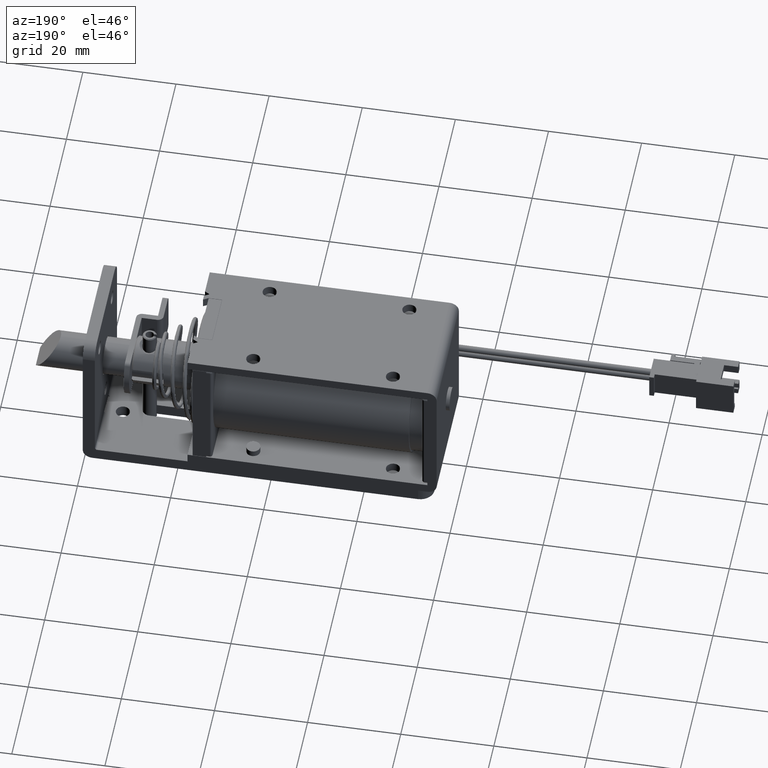
[diagram: clean part render]
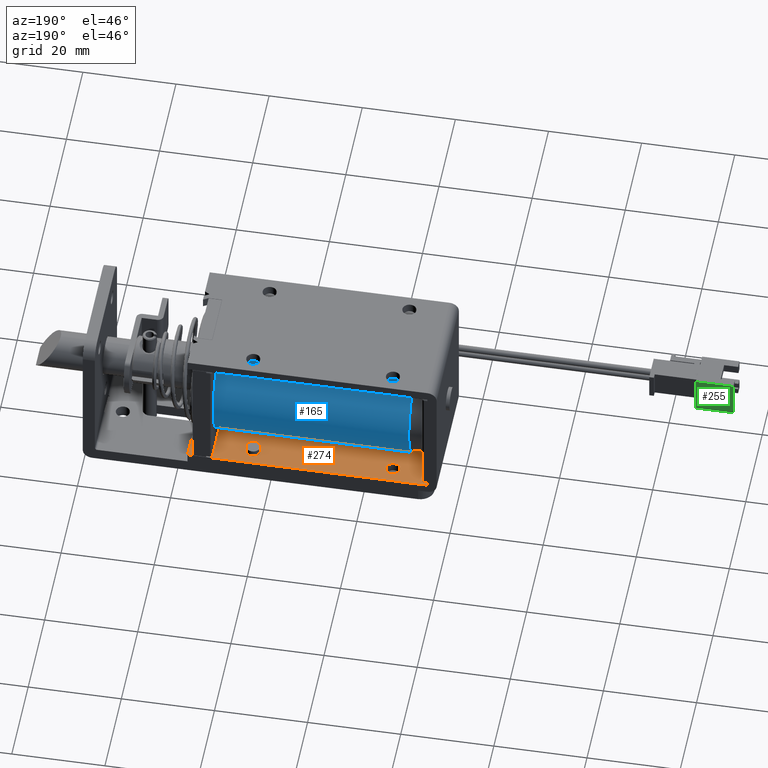
[diagram: same view with three faces highlighted in distinct colors, each labeled with its STEP entity id]
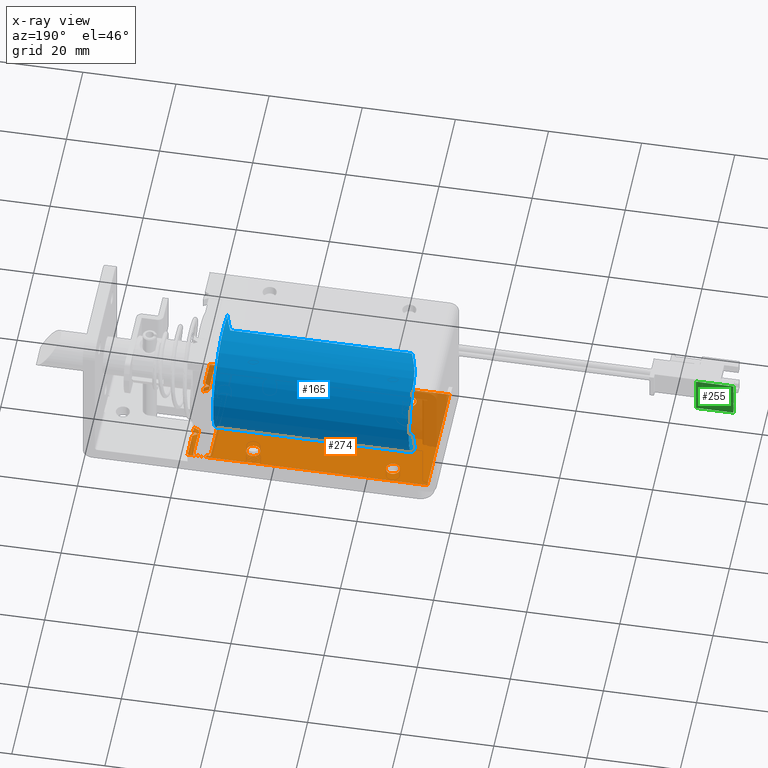
[diagram: x-ray of the same camera — body ghosted, the three highlighted faces saturated]
A machine part, auxiliary view with three faces highlighted in distinct colors.
The next image is the same camera in x-ray (body ghosted, the three faces saturated) — at least one of them is partly hidden behind the body in this view.
Their STEP definitions:

[orange] entity #274 — the highlighted planar face has unit normal (0, 0, -1).
#274=ADVANCED_FACE('',(#1783,#1784,#1785,#1786,#1787),#1782,.F.);
#1782=PLANE('',#5100);
#1783=FACE_OUTER_BOUND('',#5101,.T.);
#1784=FACE_BOUND('',#5102,.T.);
#1785=FACE_BOUND('',#5103,.T.);
#1786=FACE_BOUND('',#5104,.T.);
#1787=FACE_BOUND('',#5105,.T.);
#5097=CARTESIAN_POINT('',(-1.73500000000E+01,-1.62000000000E+01,-1.30000000000E+01));
#5098=DIRECTION('',(0.00000000000E+00,0.00000000000E+00,-1.00000000000E+00));
#5099=DIRECTION('',(-1.00000000000E+00,0.00000000000E+00,0.00000000000E+00));
#5100=AXIS2_PLACEMENT_3D('',#5097,#5098,#5099);
#5101=EDGE_LOOP('',(#8372,#8373,#8374,#8375,#8376,#8377,#8378,#8379,#8380,#8381,#8382,#8383,#8384,#8385,#8386,#8387,#8388,#8389,#8390,#8391,#8392,#8393,#8394,#8395));
#5102=EDGE_LOOP('',(#8396,#8397));
#5103=EDGE_LOOP('',(#8398,#8399));
#5104=EDGE_LOOP('',(#8400,#8401));
#5105=EDGE_LOOP('',(#8402,#8403));
#8372=ORIENTED_EDGE('',*,*,#10132,.F.);
#8373=ORIENTED_EDGE('',*,*,#10133,.T.);
#8374=ORIENTED_EDGE('',*,*,#10134,.T.);
#8375=ORIENTED_EDGE('',*,*,#10135,.F.);
#8376=ORIENTED_EDGE('',*,*,#9862,.T.);
#8377=ORIENTED_EDGE('',*,*,#9858,.T.);
#8378=ORIENTED_EDGE('',*,*,#9866,.T.);
#8379=ORIENTED_EDGE('',*,*,#10136,.F.);
#8380=ORIENTED_EDGE('',*,*,#10137,.T.);
#8381=ORIENTED_EDGE('',*,*,#10138,.T.);
#8382=ORIENTED_EDGE('',*,*,#10139,.F.);
#8383=ORIENTED_EDGE('',*,*,#10140,.F.);
#8384=ORIENTED_EDGE('',*,*,#10141,.T.);
#8385=ORIENTED_EDGE('',*,*,#10142,.F.);
#8386=ORIENTED_EDGE('',*,*,#10143,.F.);
#8387=ORIENTED_EDGE('',*,*,#10144,.T.);
#8388=ORIENTED_EDGE('',*,*,#10145,.T.);
#8389=ORIENTED_EDGE('',*,*,#10146,.F.);
#8390=ORIENTED_EDGE('',*,*,#10147,.F.);
#8391=ORIENTED_EDGE('',*,*,#10148,.T.);
#8392=ORIENTED_EDGE('',*,*,#10149,.F.);
#8393=ORIENTED_EDGE('',*,*,#10150,.F.);
#8394=ORIENTED_EDGE('',*,*,#10151,.T.);
#8395=ORIENTED_EDGE('',*,*,#10152,.F.);
#8396=ORIENTED_EDGE('',*,*,#10153,.T.);
#8397=ORIENTED_EDGE('',*,*,#10154,.T.);
#8398=ORIENTED_EDGE('',*,*,#10155,.F.);
#8399=ORIENTED_EDGE('',*,*,#10156,.F.);
#8400=ORIENTED_EDGE('',*,*,#10157,.T.);
#8401=ORIENTED_EDGE('',*,*,#10158,.T.);
#8402=ORIENTED_EDGE('',*,*,#10159,.F.);
#8403=ORIENTED_EDGE('',*,*,#10160,.F.);
#9858=EDGE_CURVE('',#11568,#11621,#11628,.T.);
#9862=EDGE_CURVE('',#11641,#11568,#11654,.T.);
#9866=EDGE_CURVE('',#11621,#11673,#11680,.T.);
#10132=EDGE_CURVE('',#13452,#11844,#13453,.T.);
#10133=EDGE_CURVE('',#13452,#13459,#13460,.T.);
#10134=EDGE_CURVE('',#13459,#13466,#13467,.T.);
#10135=EDGE_CURVE('',#11641,#13466,#13473,.T.);
#10136=EDGE_CURVE('',#13479,#11673,#13480,.T.);
#10137=EDGE_CURVE('',#13479,#13486,#13487,.T.);
#10138=EDGE_CURVE('',#13486,#13493,#13494,.T.);
#10139=EDGE_CURVE('',#11871,#13493,#13500,.T.);
#10140=EDGE_CURVE('',#13506,#11871,#13507,.T.);
#10141=EDGE_CURVE('',#13506,#13513,#13514,.T.);
#10142=EDGE_CURVE('',#13520,#13513,#13521,.T.);
#10143=EDGE_CURVE('',#13527,#13520,#13528,.T.);
#10144=EDGE_CURVE('',#13527,#13534,#13535,.T.);
#10145=EDGE_CURVE('',#13534,#13541,#13542,.T.);
#10146=EDGE_CURVE('',#13548,#13541,#13549,.T.);
#10147=EDGE_CURVE('',#13555,#13548,#13556,.T.);
#10148=EDGE_CURVE('',#13555,#13562,#13563,.T.);
#10149=EDGE_CURVE('',#13569,#13562,#13570,.T.);
#10150=EDGE_CURVE('',#13576,#13569,#13577,.T.);
#10151=EDGE_CURVE('',#13576,#13583,#13584,.T.);
#10152=EDGE_CURVE('',#11844,#13583,#13590,.T.);
#10153=EDGE_CURVE('',#13596,#13597,#13598,.T.);
#10154=EDGE_CURVE('',#13597,#13596,#13604,.T.);
#10155=EDGE_CURVE('',#13610,#13611,#13612,.T.);
#10156=EDGE_CURVE('',#13611,#13610,#13618,.T.);
#10157=EDGE_CURVE('',#13624,#13625,#13626,.T.);
#10158=EDGE_CURVE('',#13625,#13624,#13632,.T.);
#10159=EDGE_CURVE('',#13638,#13639,#13640,.T.);
#10160=EDGE_CURVE('',#13639,#13638,#13646,.T.);
#11568=VERTEX_POINT('',#17984);
#11621=VERTEX_POINT('',#18017);
#11628=LINE('',#18022,#18023);
#11641=VERTEX_POINT('',#18029);
#11654=LINE('',#18037,#18038);
#11673=VERTEX_POINT('',#18048);
#11680=LINE('',#18053,#18054);
#11844=VERTEX_POINT('',#18145);
#11871=VERTEX_POINT('',#18160);
#13452=VERTEX_POINT('',#19067);
#13453=LINE('',#19068,#19069);
#13459=VERTEX_POINT('',#19071);
#13460=LINE('',#19072,#19073);
#13466=VERTEX_POINT('',#19075);
#13467=LINE('',#19076,#19077);
#13473=LINE('',#19079,#19080);
#13479=VERTEX_POINT('',#19082);
#13480=LINE('',#19083,#19084);
#13486=VERTEX_POINT('',#19086);
#13487=LINE('',#19087,#19088);
#13493=VERTEX_POINT('',#19090);
#13494=LINE('',#19091,#19092);
#13500=LINE('',#19094,#19095);
#13506=VERTEX_POINT('',#19097);
#13507=LINE('',#19098,#19099);
#13513=VERTEX_POINT('',#19101);
#13514=LINE('',#19102,#19103);
#13520=VERTEX_POINT('',#19105);
#13521=LINE('',#19106,#19107);
#13527=VERTEX_POINT('',#19109);
#13528=LINE('',#19110,#19111);
#13534=VERTEX_POINT('',#19113);
#13535=LINE('',#19114,#19115);
#13541=VERTEX_POINT('',#19117);
#13542=LINE('',#19118,#19119);
#13548=VERTEX_POINT('',#19121);
#13549=LINE('',#19122,#19123);
#13555=VERTEX_POINT('',#19125);
#13556=LINE('',#19126,#19127);
#13562=VERTEX_POINT('',#19129);
#13563=LINE('',#19130,#19131);
#13569=VERTEX_POINT('',#19133);
#13570=LINE('',#19134,#19135);
#13576=VERTEX_POINT('',#19137);
#13577=LINE('',#19138,#19139);
#13583=VERTEX_POINT('',#19141);
#13584=LINE('',#19142,#19143);
#13590=LINE('',#19145,#19146);
#13596=VERTEX_POINT('',#19148);
#13597=VERTEX_POINT('',#19149);
#13598=CIRCLE('',#19153,1.50000000000E+00);
#13604=CIRCLE('',#19157,1.50000000000E+00);
#13610=VERTEX_POINT('',#19158);
#13611=VERTEX_POINT('',#19159);
#13612=CIRCLE('',#19163,1.50000000000E+00);
#13618=CIRCLE('',#19167,1.50000000000E+00);
#13624=VERTEX_POINT('',#19168);
#13625=VERTEX_POINT('',#19169);
#13626=CIRCLE('',#19173,1.50000000000E+00);
#13632=CIRCLE('',#19177,1.50000000000E+00);
#13638=VERTEX_POINT('',#19178);
#13639=VERTEX_POINT('',#19179);
#13640=CIRCLE('',#19183,1.50000000000E+00);
#13646=CIRCLE('',#19187,1.50000000000E+00);
#17984=CARTESIAN_POINT('',(-2.73000000000E+01,-1.30000000000E+01,-1.30000000000E+01));
#18017=CARTESIAN_POINT('',(-2.73000000000E+01,1.30000000000E+01,-1.30000000000E+01));
#18022=CARTESIAN_POINT('',(-2.73000000000E+01,-1.30000000000E+01,-1.30000000000E+01));
#18023=VECTOR('',#18024,2.60000000000E+01);
#18024=DIRECTION('',(0.00000000000E+00,1.00000000000E+00,0.00000000000E+00));
#18029=CARTESIAN_POINT('',(-2.65000000000E+01,-1.30000000000E+01,-1.30000000000E+01));
#18037=CARTESIAN_POINT('',(-2.65000000000E+01,-1.30000000000E+01,-1.30000000000E+01));
#18038=VECTOR('',#18039,8.00000000000E-01);
#18039=DIRECTION('',(-1.00000000000E+00,0.00000000000E+00,0.00000000000E+00));
#18048=CARTESIAN_POINT('',(-2.65000000000E+01,1.30000000000E+01,-1.30000000000E+01));
#18053=CARTESIAN_POINT('',(-2.73000000000E+01,1.30000000000E+01,-1.30000000000E+01));
#18054=VECTOR('',#18055,8.00000000000E-01);
#18055=DIRECTION('',(1.00000000000E+00,0.00000000000E+00,0.00000000000E+00));
#18145=CARTESIAN_POINT('',(-2.36000000000E+01,-6.00000000000E+00,-1.30000000000E+01));
#18160=CARTESIAN_POINT('',(-2.36000000000E+01,6.00000000000E+00,-1.30000000000E+01));
#19067=CARTESIAN_POINT('',(-2.36500000000E+01,-6.00000000000E+00,-1.30000000000E+01));
#19068=CARTESIAN_POINT('',(-2.36500000000E+01,-6.00000000000E+00,-1.30000000000E+01));
#19069=VECTOR('',#19070,5.00000000000E-02);
#19070=DIRECTION('',(1.00000000000E+00,0.00000000000E+00,0.00000000000E+00));
#19071=CARTESIAN_POINT('',(-2.36500000000E+01,-1.34500000000E+01,-1.30000000000E+01));
#19072=CARTESIAN_POINT('',(-2.36500000000E+01,-6.00000000000E+00,-1.30000000000E+01));
#19073=VECTOR('',#19074,7.45000000000E+00);
#19074=DIRECTION('',(0.00000000000E+00,-1.00000000000E+00,0.00000000000E+00));
#19075=CARTESIAN_POINT('',(-2.65000000000E+01,-1.34500000000E+01,-1.30000000000E+01));
#19076=CARTESIAN_POINT('',(-2.36500000000E+01,-1.34500000000E+01,-1.30000000000E+01));
#19077=VECTOR('',#19078,2.85000000000E+00);
#19078=DIRECTION('',(-1.00000000000E+00,0.00000000000E+00,0.00000000000E+00));
#19079=CARTESIAN_POINT('',(-2.65000000000E+01,-1.30000000000E+01,-1.30000000000E+01));
#19080=VECTOR('',#19081,4.50000000000E-01);
#19081=DIRECTION('',(0.00000000000E+00,-1.00000000000E+00,0.00000000000E+00));
#19082=CARTESIAN_POINT('',(-2.65000000000E+01,1.34500000000E+01,-1.30000000000E+01));
#19083=CARTESIAN_POINT('',(-2.65000000000E+01,1.34500000000E+01,-1.30000000000E+01));
#19084=VECTOR('',#19085,4.49999999999E-01);
#19085=DIRECTION('',(0.00000000000E+00,-1.00000000000E+00,0.00000000000E+00));
#19086=CARTESIAN_POINT('',(-2.36500000000E+01,1.34500000000E+01,-1.30000000000E+01));
#19087=CARTESIAN_POINT('',(-2.65000000000E+01,1.34500000000E+01,-1.30000000000E+01));
#19088=VECTOR('',#19089,2.85000000000E+00);
#19089=DIRECTION('',(1.00000000000E+00,0.00000000000E+00,0.00000000000E+00));
#19090=CARTESIAN_POINT('',(-2.36500000000E+01,6.00000000000E+00,-1.30000000000E+01));
#19091=CARTESIAN_POINT('',(-2.36500000000E+01,1.34500000000E+01,-1.30000000000E+01));
#19092=VECTOR('',#19093,7.45000000000E+00);
#19093=DIRECTION('',(0.00000000000E+00,-1.00000000000E+00,0.00000000000E+00));
#19094=CARTESIAN_POINT('',(-2.36000000000E+01,6.00000000000E+00,-1.30000000000E+01));
#19095=VECTOR('',#19096,5.00000000000E-02);
#19096=DIRECTION('',(-1.00000000000E+00,0.00000000000E+00,0.00000000000E+00));
#19097=CARTESIAN_POINT('',(-2.25000000000E+01,5.36491470389E+00,-1.30000000000E+01));
#19098=CARTESIAN_POINT('',(-2.25000000000E+01,5.36491470389E+00,-1.30000000000E+01));
#19099=VECTOR('',#19100,1.27017059222E+00);
#19100=DIRECTION('',(-8.66025403784E-01,5.00000000000E-01,0.00000000000E+00));
#19101=CARTESIAN_POINT('',(-2.25000000000E+01,6.51961524227E+00,-1.30000000000E+01));
#19102=CARTESIAN_POINT('',(-2.25000000000E+01,5.36491470389E+00,-1.30000000000E+01));
#19103=VECTOR('',#19104,1.15470053838E+00);
#19104=DIRECTION('',(0.00000000000E+00,1.00000000000E+00,0.00000000000E+00));
#19105=CARTESIAN_POINT('',(-2.36000000000E+01,7.15470053838E+00,-1.30000000000E+01));
#19106=CARTESIAN_POINT('',(-2.36000000000E+01,7.15470053838E+00,-1.30000000000E+01));
#19107=VECTOR('',#19108,1.27017059222E+00);
#19108=DIRECTION('',(8.66025403784E-01,-5.00000000000E-01,0.00000000000E+00));
#19109=CARTESIAN_POINT('',(-2.25000000000E+01,7.78978583449E+00,-1.30000000000E+01));
#19110=CARTESIAN_POINT('',(-2.25000000000E+01,7.78978583449E+00,-1.30000000000E+01));
#19111=VECTOR('',#19112,1.27017059222E+00);
#19112=DIRECTION('',(-8.66025403784E-01,-5.00000000000E-01,0.00000000000E+00));
#19113=CARTESIAN_POINT('',(-2.25000000000E+01,1.35000000000E+01,-1.30000000000E+01));
#19114=CARTESIAN_POINT('',(-2.25000000000E+01,7.78978583449E+00,-1.30000000000E+01));
#19115=VECTOR('',#19116,5.71021416551E+00);
#19116=DIRECTION('',(0.00000000000E+00,1.00000000000E+00,0.00000000000E+00));
#19117=CARTESIAN_POINT('',(-7.40000000000E+01,1.35000000000E+01,-1.30000000000E+01));
#19118=CARTESIAN_POINT('',(-2.25000000000E+01,1.35000000000E+01,-1.30000000000E+01));
#19119=VECTOR('',#19120,5.15000000000E+01);
#19120=DIRECTION('',(-1.00000000000E+00,0.00000000000E+00,0.00000000000E+00));
#19121=CARTESIAN_POINT('',(-7.40000000000E+01,-1.35000000000E+01,-1.30000000000E+01));
#19122=CARTESIAN_POINT('',(-7.40000000000E+01,-1.35000000000E+01,-1.30000000000E+01));
#19123=VECTOR('',#19124,2.70000000000E+01);
#19124=DIRECTION('',(0.00000000000E+00,1.00000000000E+00,0.00000000000E+00));
#19125=CARTESIAN_POINT('',(-2.25000000000E+01,-1.35000000000E+01,-1.30000000000E+01));
#19126=CARTESIAN_POINT('',(-2.25000000000E+01,-1.35000000000E+01,-1.30000000000E+01));
#19127=VECTOR('',#19128,5.15000000000E+01);
#19128=DIRECTION('',(-1.00000000000E+00,0.00000000000E+00,0.00000000000E+00));
#19129=CARTESIAN_POINT('',(-2.25000000000E+01,-7.78978583449E+00,-1.30000000000E+01));
#19130=CARTESIAN_POINT('',(-2.25000000000E+01,-1.35000000000E+01,-1.30000000000E+01));
#19131=VECTOR('',#19132,5.71021416551E+00);
#19132=DIRECTION('',(0.00000000000E+00,1.00000000000E+00,0.00000000000E+00));
#19133=CARTESIAN_POINT('',(-2.36000000000E+01,-7.15470053838E+00,-1.30000000000E+01));
#19134=CARTESIAN_POINT('',(-2.36000000000E+01,-7.15470053838E+00,-1.30000000000E+01));
#19135=VECTOR('',#19136,1.27017059222E+00);
#19136=DIRECTION('',(8.66025403784E-01,-5.00000000000E-01,0.00000000000E+00));
#19137=CARTESIAN_POINT('',(-2.25000000000E+01,-6.51961524227E+00,-1.30000000000E+01));
#19138=CARTESIAN_POINT('',(-2.25000000000E+01,-6.51961524227E+00,-1.30000000000E+01));
#19139=VECTOR('',#19140,1.27017059222E+00);
#19140=DIRECTION('',(-8.66025403784E-01,-5.00000000000E-01,0.00000000000E+00));
#19141=CARTESIAN_POINT('',(-2.25000000000E+01,-5.36491470389E+00,-1.30000000000E+01));
#19142=CARTESIAN_POINT('',(-2.25000000000E+01,-6.51961524227E+00,-1.30000000000E+01));
#19143=VECTOR('',#19144,1.15470053838E+00);
#19144=DIRECTION('',(0.00000000000E+00,1.00000000000E+00,0.00000000000E+00));
#19145=CARTESIAN_POINT('',(-2.36000000000E+01,-6.00000000000E+00,-1.30000000000E+01));
#19146=VECTOR('',#19147,1.27017059222E+00);
#19147=DIRECTION('',(8.66025403784E-01,5.00000000001E-01,0.00000000000E+00));
#19148=CARTESIAN_POINT('',(-6.75000000000E+01,-1.00000000000E+01,-1.30000000000E+01));
#19149=CARTESIAN_POINT('',(-6.45000000000E+01,-1.00000000000E+01,-1.30000000000E+01));
#19150=CARTESIAN_POINT('',(-6.60000000000E+01,-1.00000000000E+01,-1.30000000000E+01));
#19151=DIRECTION('',(-0.00000000000E+00,0.00000000000E+00,-1.00000000000E+00));
#19152=DIRECTION('',(-1.00000000000E+00,-1.22460635382E-16,0.00000000000E+00));
#19153=AXIS2_PLACEMENT_3D('',#19150,#19151,#19152);
#19154=CARTESIAN_POINT('',(-6.60000000000E+01,-1.00000000000E+01,-1.30000000000E+01));
#19155=DIRECTION('',(-0.00000000000E+00,0.00000000000E+00,-1.00000000000E+00));
#19156=DIRECTION('',(-1.00000000000E+00,-1.22460635382E-16,0.00000000000E+00));
#19157=AXIS2_PLACEMENT_3D('',#19154,#19155,#19156);
#19158=CARTESIAN_POINT('',(-3.45000000000E+01,-1.00000000000E+01,-1.30000000000E+01));
#19159=CARTESIAN_POINT('',(-3.75000000000E+01,-1.00000000000E+01,-1.30000000000E+01));
#19160=CARTESIAN_POINT('',(-3.60000000000E+01,-1.00000000000E+01,-1.30000000000E+01));
#19161=DIRECTION('',(0.00000000000E+00,0.00000000000E+00,1.00000000000E+00));
#19162=DIRECTION('',(-1.00000000000E+00,-1.22460635382E-16,0.00000000000E+00));
#19163=AXIS2_PLACEMENT_3D('',#19160,#19161,#19162);
#19164=CARTESIAN_POINT('',(-3.60000000000E+01,-1.00000000000E+01,-1.30000000000E+01));
#19165=DIRECTION('',(0.00000000000E+00,0.00000000000E+00,1.00000000000E+00));
#19166=DIRECTION('',(-1.00000000000E+00,-1.22460635382E-16,0.00000000000E+00));
#19167=AXIS2_PLACEMENT_3D('',#19164,#19165,#19166);
#19168=CARTESIAN_POINT('',(-3.75000000000E+01,1.00000000000E+01,-1.30000000000E+01));
#19169=CARTESIAN_POINT('',(-3.45000000000E+01,1.00000000000E+01,-1.30000000000E+01));
#19170=CARTESIAN_POINT('',(-3.60000000000E+01,1.00000000000E+01,-1.30000000000E+01));
#19171=DIRECTION('',(-0.00000000000E+00,0.00000000000E+00,-1.00000000000E+00));
#19172=DIRECTION('',(-1.00000000000E+00,-1.22460635382E-16,0.00000000000E+00));
#19173=AXIS2_PLACEMENT_3D('',#19170,#19171,#19172);
#19174=CARTESIAN_POINT('',(-3.60000000000E+01,1.00000000000E+01,-1.30000000000E+01));
#19175=DIRECTION('',(-0.00000000000E+00,0.00000000000E+00,-1.00000000000E+00));
#19176=DIRECTION('',(-1.00000000000E+00,-1.22460635382E-16,0.00000000000E+00));
#19177=AXIS2_PLACEMENT_3D('',#19174,#19175,#19176);
#19178=CARTESIAN_POINT('',(-6.45000000000E+01,1.00000000000E+01,-1.30000000000E+01));
#19179=CARTESIAN_POINT('',(-6.75000000000E+01,1.00000000000E+01,-1.30000000000E+01));
#19180=CARTESIAN_POINT('',(-6.60000000000E+01,1.00000000000E+01,-1.30000000000E+01));
#19181=DIRECTION('',(0.00000000000E+00,0.00000000000E+00,1.00000000000E+00));
#19182=DIRECTION('',(-1.00000000000E+00,-1.22460635382E-16,0.00000000000E+00));
#19183=AXIS2_PLACEMENT_3D('',#19180,#19181,#19182);
#19184=CARTESIAN_POINT('',(-6.60000000000E+01,1.00000000000E+01,-1.30000000000E+01));
#19185=DIRECTION('',(0.00000000000E+00,0.00000000000E+00,1.00000000000E+00));
#19186=DIRECTION('',(-1.00000000000E+00,-1.22460635382E-16,0.00000000000E+00));
#19187=AXIS2_PLACEMENT_3D('',#19184,#19185,#19186);

[blue] entity #165 — the highlighted cylindrical surface (partial cylindrical patch) has radius 12.3 mm, axis along (1, 0, 0).
#165=ADVANCED_FACE('',(#686),#685,.T.);
#685=CYLINDRICAL_SURFACE('',#4536,1.23000000000E+01);
#686=FACE_OUTER_BOUND('',#4537,.T.);
#4533=CARTESIAN_POINT('',(-1.20000000000E+01,0.00000000000E+00,-4.44089209850E-16));
#4534=DIRECTION('',(1.00000000000E+00,0.00000000000E+00,-0.00000000000E+00));
#4535=DIRECTION('',(0.00000000000E+00,-9.99961923064E-01,8.72653549837E-03));
#4536=AXIS2_PLACEMENT_3D('',#4533,#4534,#4535);
#4537=EDGE_LOOP('',(#7810,#7811,#7812,#7813,#7814,#7815,#7816,#7817));
#7810=ORIENTED_EDGE('',*,*,#9818,.T.);
#7811=ORIENTED_EDGE('',*,*,#9798,.T.);
#7812=ORIENTED_EDGE('',*,*,#9819,.F.);
#7813=ORIENTED_EDGE('',*,*,#9816,.T.);
#7814=ORIENTED_EDGE('',*,*,#9820,.T.);
#7815=ORIENTED_EDGE('',*,*,#9821,.T.);
#7816=ORIENTED_EDGE('',*,*,#9822,.T.);
#7817=ORIENTED_EDGE('',*,*,#9808,.T.);
#9798=EDGE_CURVE('',#11230,#11223,#11231,.T.);
#9808=EDGE_CURVE('',#11296,#11289,#11297,.T.);
#9816=EDGE_CURVE('',#11352,#11345,#11353,.T.);
#9818=EDGE_CURVE('',#11289,#11230,#11365,.T.);
#9819=EDGE_CURVE('',#11352,#11223,#11371,.T.);
#9820=EDGE_CURVE('',#11345,#11377,#11378,.T.);
#9821=EDGE_CURVE('',#11377,#11384,#11385,.T.);
#9822=EDGE_CURVE('',#11384,#11296,#11391,.T.);
#11223=VERTEX_POINT('',#17724);
#11230=VERTEX_POINT('',#17728);
#11231=(BOUNDED_CURVE() B_SPLINE_CURVE(3,(#17729,#17730,#17731,#17732,#17733,#17734,#17735,#17736,#17737,#17738,#17739,#17740),.UNSPECIFIED.,.F.,.F.) B_SPLINE_CURVE_WITH_KNOTS((4,2,2,2,2,4),(-6.33678018354E-03,-5.54468266060E-03,-4.75258513766E-03,-3.16839009177E-03,-1.58419504589E-03,-0.00000000000E+00),.UNSPECIFIED.) CURVE() GEOMETRIC_REPRESENTATION_ITEM() RATIONAL_B_SPLINE_CURVE((1.00000000000E+00,1.00000000000E+00,1.00000000000E+00,1.00000000000E+00,1.00000000000E+00,1.00000000000E+00,1.00000000000E+00,1.00000000000E+00,1.00000000000E+00,1.00000000000E+00,1.00000000000E+00,1.00000000000E+00)) REPRESENTATION_ITEM('') );
#11289=VERTEX_POINT('',#17774);
#11296=VERTEX_POINT('',#17778);
#11297=(BOUNDED_CURVE() B_SPLINE_CURVE(3,(#17779,#17780,#17781,#17782,#17783,#17784,#17785,#17786,#17787,#17788,#17789,#17790),.UNSPECIFIED.,.F.,.F.) B_SPLINE_CURVE_WITH_KNOTS((4,2,2,2,2,4),(0.00000000000E+00,1.58419504589E-03,3.16839009178E-03,4.75258513766E-03,5.54468266061E-03,6.33678018355E-03),.UNSPECIFIED.) CURVE() GEOMETRIC_REPRESENTATION_ITEM() RATIONAL_B_SPLINE_CURVE((1.00000000000E+00,1.00000000000E+00,1.00000000000E+00,1.00000000000E+00,1.00000000000E+00,1.00000000000E+00,1.00000000000E+00,1.00000000000E+00,1.00000000000E+00,1.00000000000E+00,1.00000000000E+00,1.00000000000E+00)) REPRESENTATION_ITEM('') );
#11345=VERTEX_POINT('',#17830);
#11352=VERTEX_POINT('',#17834);
#11353=(BOUNDED_CURVE() B_SPLINE_CURVE(3,(#17835,#17836,#17837,#17838,#17839,#17840,#17841,#17842,#17843,#17844,#17845,#17846),.UNSPECIFIED.,.F.,.F.) B_SPLINE_CURVE_WITH_KNOTS((4,2,2,2,2,4),(0.00000000000E+00,1.58419504588E-03,3.16839009177E-03,4.75258513765E-03,5.54468266060E-03,6.33678018354E-03),.UNSPECIFIED.) CURVE() GEOMETRIC_REPRESENTATION_ITEM() RATIONAL_B_SPLINE_CURVE((1.00000000000E+00,1.00000000000E+00,1.00000000000E+00,1.00000000000E+00,1.00000000000E+00,1.00000000000E+00,1.00000000000E+00,1.00000000000E+00,1.00000000000E+00,1.00000000000E+00,1.00000000000E+00,1.00000000000E+00)) REPRESENTATION_ITEM('') );
#11365=LINE('',#17850,#17851);
#11371=CIRCLE('',#17856,1.23000000000E+01);
#11377=VERTEX_POINT('',#17857);
#11378=LINE('',#17858,#17859);
#11384=VERTEX_POINT('',#17861);
#11385=(BOUNDED_CURVE() B_SPLINE_CURVE(3,(#17862,#17863,#17864,#17865,#17866,#17867,#17868,#17869,#17870,#17871,#17872,#17873),.UNSPECIFIED.,.F.,.F.) B_SPLINE_CURVE_WITH_KNOTS((4,2,2,2,2,4),(-6.33678018354E-03,-5.54468266060E-03,-4.75258513765E-03,-3.16839009177E-03,-1.58419504588E-03,-0.00000000000E+00),.UNSPECIFIED.) CURVE() GEOMETRIC_REPRESENTATION_ITEM() RATIONAL_B_SPLINE_CURVE((1.00000000000E+00,1.00000000000E+00,1.00000000000E+00,1.00000000000E+00,1.00000000000E+00,1.00000000000E+00,1.00000000000E+00,1.00000000000E+00,1.00000000000E+00,1.00000000000E+00,1.00000000000E+00,1.00000000000E+00)) REPRESENTATION_ITEM('') );
#11391=CIRCLE('',#17877,1.23000000000E+01);
#17724=CARTESIAN_POINT('',(-6.98000000000E+01,5.88642506110E+00,-1.08000000000E+01));
#17728=CARTESIAN_POINT('',(-6.83000000000E+01,0.00000000000E+00,-1.23000000000E+01));
#17729=CARTESIAN_POINT('',(-6.83000000000E+01,0.00000000000E+00,-1.23000000000E+01));
#17730=CARTESIAN_POINT('',(-6.83870487668E+01,2.49270379940E-01,-1.23000000000E+01));
#17731=CARTESIAN_POINT('',(-6.84749640169E+01,5.01023163610E-01,-1.22923284073E+01));
#17732=CARTESIAN_POINT('',(-6.86472944576E+01,9.99540350543E-01,-1.22618628671E+01));
#17733=CARTESIAN_POINT('',(-6.87323075366E+01,1.24800037237E+00,-1.22390719366E+01));
#17734=CARTESIAN_POINT('',(-6.89814170833E+01,1.99175849493E+00,-1.21479399607E+01));
#17735=CARTESIAN_POINT('',(-6.91398379236E+01,2.48538252830E+00,-1.20570259200E+01));
#17736=CARTESIAN_POINT('',(-6.94244274960E+01,3.47291734344E+00,-1.18104972577E+01));
#17737=CARTESIAN_POINT('',(-6.95513331784E+01,3.96961180314E+00,-1.16534579420E+01));
#17738=CARTESIAN_POINT('',(-6.97377840188E+01,4.93990180385E+00,-1.12764475808E+01));
#17739=CARTESIAN_POINT('',(-6.98000000000E+01,5.41621080991E+00,-1.10562852734E+01));
#17740=CARTESIAN_POINT('',(-6.98000000000E+01,5.88642506110E+00,-1.08000000000E+01));
#17774=CARTESIAN_POINT('',(-2.93000000000E+01,0.00000000000E+00,-1.23000000000E+01));
#17778=CARTESIAN_POINT('',(-2.78000000000E+01,-5.88642506111E+00,-1.08000000000E+01));
#17779=CARTESIAN_POINT('',(-2.78000000000E+01,-5.88642506111E+00,-1.08000000000E+01));
#17780=CARTESIAN_POINT('',(-2.78000000000E+01,-5.41621080991E+00,-1.10562852734E+01));
#17781=CARTESIAN_POINT('',(-2.78622159812E+01,-4.93990180385E+00,-1.12764475808E+01));
#17782=CARTESIAN_POINT('',(-2.80486668216E+01,-3.96961180314E+00,-1.16534579420E+01));
#17783=CARTESIAN_POINT('',(-2.81755725040E+01,-3.47291734343E+00,-1.18104972577E+01));
#17784=CARTESIAN_POINT('',(-2.84601620764E+01,-2.48538252830E+00,-1.20570259200E+01));
#17785=CARTESIAN_POINT('',(-2.86185829167E+01,-1.99175849493E+00,-1.21479399607E+01));
#17786=CARTESIAN_POINT('',(-2.88676924634E+01,-1.24800037238E+00,-1.22390719366E+01));
#17787=CARTESIAN_POINT('',(-2.89527055424E+01,-9.99540350546E-01,-1.22618628671E+01));
#17788=CARTESIAN_POINT('',(-2.91250359831E+01,-5.01023163616E-01,-1.22923284073E+01));
#17789=CARTESIAN_POINT('',(-2.92129512352E+01,-2.49270380643E-01,-1.23000000000E+01));
#17790=CARTESIAN_POINT('',(-2.93000000000E+01,0.00000000000E+00,-1.23000000000E+01));
#17830=CARTESIAN_POINT('',(-6.83000000000E+01,0.00000000000E+00,1.23000000000E+01));
#17834=CARTESIAN_POINT('',(-6.98000000000E+01,5.88642506110E+00,1.08000000000E+01));
#17835=CARTESIAN_POINT('',(-6.98000000000E+01,5.88642506110E+00,1.08000000000E+01));
#17836=CARTESIAN_POINT('',(-6.98000000000E+01,5.41621080991E+00,1.10562852734E+01));
#17837=CARTESIAN_POINT('',(-6.97377840188E+01,4.93990180385E+00,1.12764475808E+01));
#17838=CARTESIAN_POINT('',(-6.95513331784E+01,3.96961180315E+00,1.16534579420E+01));
#17839=CARTESIAN_POINT('',(-6.94244274960E+01,3.47291734344E+00,1.18104972577E+01));
#17840=CARTESIAN_POINT('',(-6.91398379236E+01,2.48538252830E+00,1.20570259200E+01));
#17841=CARTESIAN_POINT('',(-6.89814170834E+01,1.99175849493E+00,1.21479399607E+01));
#17842=CARTESIAN_POINT('',(-6.87323075366E+01,1.24800037237E+00,1.22390719366E+01));
#17843=CARTESIAN_POINT('',(-6.86472944576E+01,9.99540350541E-01,1.22618628671E+01));
#17844=CARTESIAN_POINT('',(-6.84749640169E+01,5.01023163607E-01,1.22923284073E+01));
#17845=CARTESIAN_POINT('',(-6.83870487682E+01,2.49270379458E-01,1.23000000000E+01));
#17846=CARTESIAN_POINT('',(-6.83000000000E+01,0.00000000000E+00,1.23000000000E+01));
#17850=CARTESIAN_POINT('',(-2.93000000000E+01,0.00000000000E+00,-1.23000000000E+01));
#17851=VECTOR('',#17852,3.90000000000E+01);
#17852=DIRECTION('',(-1.00000000000E+00,0.00000000000E+00,-2.36847578587E-14));
#17853=CARTESIAN_POINT('',(-6.98000000000E+01,0.00000000000E+00,-4.44089209850E-16));
#17854=DIRECTION('',(-1.00000000000E+00,0.00000000000E+00,0.00000000000E+00));
#17855=DIRECTION('',(-0.00000000000E+00,-0.00000000000E+00,-1.00000000000E+00));
#17856=AXIS2_PLACEMENT_3D('',#17853,#17854,#17855);
#17857=CARTESIAN_POINT('',(-2.93000000000E+01,0.00000000000E+00,1.23000000000E+01));
#17858=CARTESIAN_POINT('',(-6.83000000000E+01,0.00000000000E+00,1.23000000000E+01));
#17859=VECTOR('',#17860,3.90000000000E+01);
#17860=DIRECTION('',(1.00000000000E+00,0.00000000000E+00,0.00000000000E+00));
#17861=CARTESIAN_POINT('',(-2.78000000000E+01,-5.88642506110E+00,1.08000000000E+01));
#17862=CARTESIAN_POINT('',(-2.93000000000E+01,0.00000000000E+00,1.23000000000E+01));
#17863=CARTESIAN_POINT('',(-2.92129512318E+01,-2.49270379459E-01,1.23000000000E+01));
#17864=CARTESIAN_POINT('',(-2.91250359831E+01,-5.01023163606E-01,1.22923284073E+01));
#17865=CARTESIAN_POINT('',(-2.89527055424E+01,-9.99540350541E-01,1.22618628671E+01));
#17866=CARTESIAN_POINT('',(-2.88676924634E+01,-1.24800037237E+00,1.22390719366E+01));
#17867=CARTESIAN_POINT('',(-2.86185829166E+01,-1.99175849493E+00,1.21479399607E+01));
#17868=CARTESIAN_POINT('',(-2.84601620764E+01,-2.48538252830E+00,1.20570259200E+01));
#17869=CARTESIAN_POINT('',(-2.81755725040E+01,-3.47291734344E+00,1.18104972577E+01));
#17870=CARTESIAN_POINT('',(-2.80486668216E+01,-3.96961180314E+00,1.16534579420E+01));
#17871=CARTESIAN_POINT('',(-2.78622159812E+01,-4.93990180385E+00,1.12764475808E+01));
#17872=CARTESIAN_POINT('',(-2.78000000000E+01,-5.41621080991E+00,1.10562852734E+01));
#17873=CARTESIAN_POINT('',(-2.78000000000E+01,-5.88642506110E+00,1.08000000000E+01));
#17874=CARTESIAN_POINT('',(-2.78000000000E+01,0.00000000000E+00,-4.44089209850E-16));
#17875=DIRECTION('',(-1.00000000000E+00,0.00000000000E+00,-0.00000000000E+00));
#17876=DIRECTION('',(0.00000000000E+00,-4.78571143179E-01,-8.78048780488E-01));
#17877=AXIS2_PLACEMENT_3D('',#17874,#17875,#17876);

[green] entity #255 — the highlighted planar face has unit normal (0, -1, 0).
#255=ADVANCED_FACE('',(#1592),#1591,.F.);
#1591=PLANE('',#5004);
#1592=FACE_OUTER_BOUND('',#5005,.T.);
#5001=CARTESIAN_POINT('',(-1.36336061680E+02,-1.01500000000E+01,-4.80000000000E+00));
#5002=DIRECTION('',(0.00000000000E+00,-1.00000000000E+00,0.00000000000E+00));
#5003=DIRECTION('',(1.00000000000E+00,0.00000000000E+00,0.00000000000E+00));
#5004=AXIS2_PLACEMENT_3D('',#5001,#5002,#5003);
#5005=EDGE_LOOP('',(#8278,#8279,#8280,#8281));
#8278=ORIENTED_EDGE('',*,*,#10098,.F.);
#8279=ORIENTED_EDGE('',*,*,#10115,.F.);
#8280=ORIENTED_EDGE('',*,*,#10100,.T.);
#8281=ORIENTED_EDGE('',*,*,#10116,.T.);
#10098=EDGE_CURVE('',#13229,#13186,#13236,.T.);
#10100=EDGE_CURVE('',#13250,#13243,#13251,.T.);
#10115=EDGE_CURVE('',#13250,#13229,#13346,.T.);
#10116=EDGE_CURVE('',#13243,#13186,#13352,.T.);
#13186=VERTEX_POINT('',#18922);
#13229=VERTEX_POINT('',#18947);
#13236=LINE('',#18951,#18952);
#13243=VERTEX_POINT('',#18955);
#13250=VERTEX_POINT('',#18959);
#13251=LINE('',#18960,#18961);
#13346=LINE('',#19010,#19011);
#13352=LINE('',#19013,#19014);
#18922=CARTESIAN_POINT('',(-1.27536061680E+02,-1.01500000000E+01,-4.00000000000E+00));
#18947=CARTESIAN_POINT('',(-1.35536061680E+02,-1.01500000000E+01,-4.00000000000E+00));
#18951=CARTESIAN_POINT('',(-1.35536061680E+02,-1.01500000000E+01,-4.00000000000E+00));
#18952=VECTOR('',#18953,8.00000000000E+00);
#18953=DIRECTION('',(1.00000000000E+00,0.00000000000E+00,0.00000000000E+00));
#18955=CARTESIAN_POINT('',(-1.27536061680E+02,-1.01500000000E+01,4.00000000000E+00));
#18959=CARTESIAN_POINT('',(-1.35536061680E+02,-1.01500000000E+01,4.00000000000E+00));
#18960=CARTESIAN_POINT('',(-1.35536061680E+02,-1.01500000000E+01,4.00000000000E+00));
#18961=VECTOR('',#18962,8.00000000000E+00);
#18962=DIRECTION('',(1.00000000000E+00,0.00000000000E+00,0.00000000000E+00));
#19010=CARTESIAN_POINT('',(-1.35536061680E+02,-1.01500000000E+01,4.00000000000E+00));
#19011=VECTOR('',#19012,8.00000000000E+00);
#19012=DIRECTION('',(0.00000000000E+00,0.00000000000E+00,-1.00000000000E+00));
#19013=CARTESIAN_POINT('',(-1.27536061680E+02,-1.01500000000E+01,4.00000000000E+00));
#19014=VECTOR('',#19015,8.00000000000E+00);
#19015=DIRECTION('',(0.00000000000E+00,0.00000000000E+00,-1.00000000000E+00));